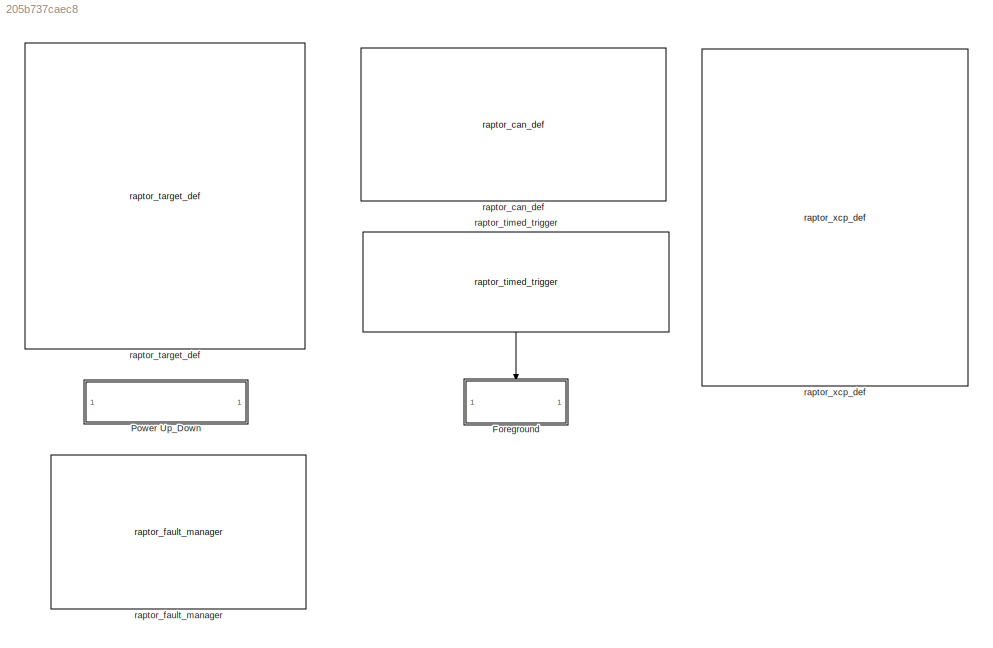
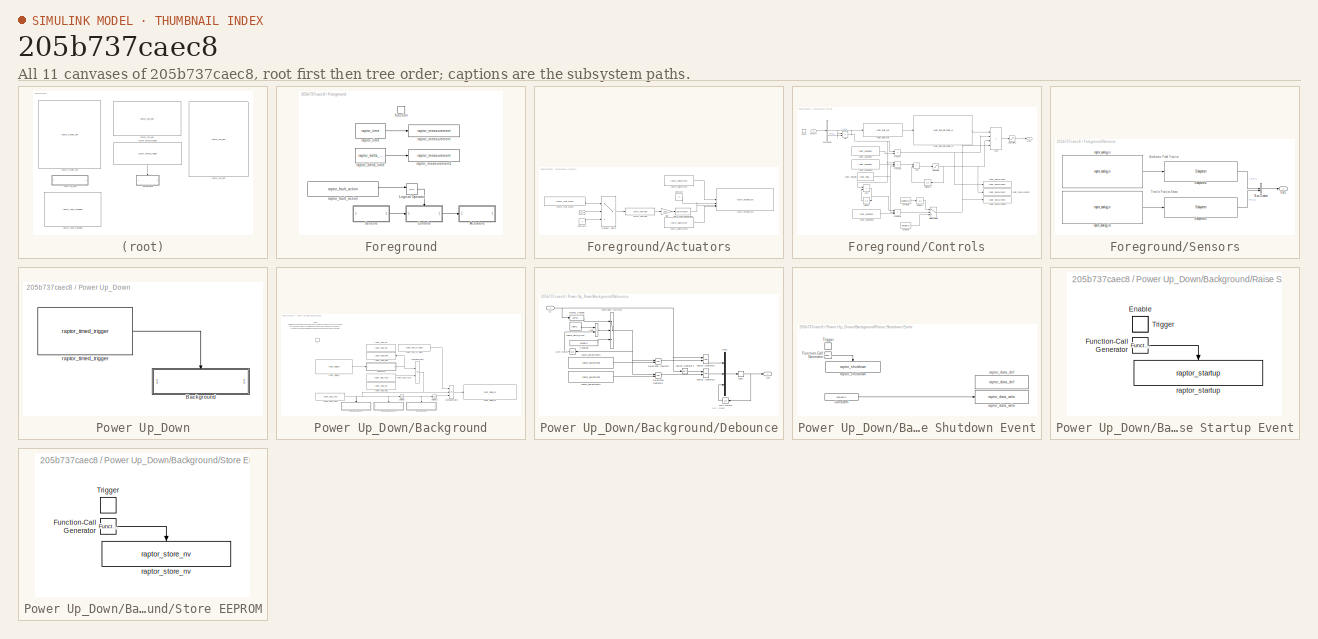
[diagram: thumbnail index - all 11 canvases of the model, root first then tree order]
MODEL slx_205b737caec8
KIND model
CONFIG AbsTol = auto
CONFIG EnableMultiTasking = on
CONFIG FixedStep = 0.005
CONFIG InitFcn = try, model_open; catch, end
CONFIG MaxStep = auto
CONFIG MinStep = auto
CONFIG PreLoadFcn = try, model_open; catch, disp('Error occurred while executing model pre-load callback: model_open.m'); disp('Please assure that the MATLAB working directory is set to the model directory before opening.'); end
CONFIG RelTol = 1e-3
CONFIG SampleTimeConstraint = Unconstrained
CONFIG SolverName = FixedStepDiscrete
CONFIG StartTime = 0.0
CONFIG StopTime = 10.0
BLOCK [SubSystem] Foreground
  RTWSystemCode = Nonreusable function
  TreatAsAtomicUnit = on
BLOCK [SubSystem] Foreground/Actuators
BLOCK [Constant] Foreground/Actuators/Constant
  OutDataTypeStr = boolean
  Value = 0
BLOCK [Constant] Foreground/Actuators/Constant1
  OutDataTypeStr = double
  Value = 0
BLOCK [Inport] Foreground/Actuators/Controls
BLOCK [DataTypeConversion] Foreground/Actuators/Data Type Conversion
  OutDataTypeStr = int16
  RndMeth = Floor
  SaturateOnIntegerOverflow = off
BLOCK [Gain] Foreground/Actuators/Gain
  Gain = 100
BLOCK [MultiPortSwitch] Foreground/Actuators/Multiport Switch
  DataPortOrder = Zero-based contiguous
  InputSameDT = off
  Inputs = 2
  SaturateOnIntegerOverflow = off
  zeroidx = on
BLOCK [Reference] Foreground/Actuators/raptor_adjustment  REF=Raptor_lib/Data Storage/raptor_adjustment
  SourceBlock = Raptor_lib/Data Storage/raptor_adjustment
  SourceProductName = Raptor
  SourceType = Adjustment
BLOCK [Reference] Foreground/Actuators/raptor_adjustment1  REF=Raptor_lib/Data Storage/raptor_adjustment
  SourceBlock = Raptor_lib/Data Storage/raptor_adjustment
  SourceProductName = Raptor
  SourceType = Adjustment
BLOCK [Reference] Foreground/Actuators/raptor_fault_action  REF=Raptor_lib/Faults/raptor_fault_action
  SourceBlock = Raptor_lib/Faults/raptor_fault_action
  SourceProductName = Raptor
  SourceType = Fault Action
BLOCK [Reference] Foreground/Actuators/raptor_hbridge_out  REF=Raptor_lib/Input & Output/raptor_hbridge_out
  SourceBlock = Raptor_lib/Input & Output/raptor_hbridge_out
  SourceProductName = Raptor
  SourceType = H-Bridge Output Block
BLOCK [Reference] Foreground/Actuators/raptor_override  REF=Raptor_lib/Data Storage/raptor_override
  SourceBlock = Raptor_lib/Data Storage/raptor_override
  SourceProductName = Raptor
  SourceType = Override
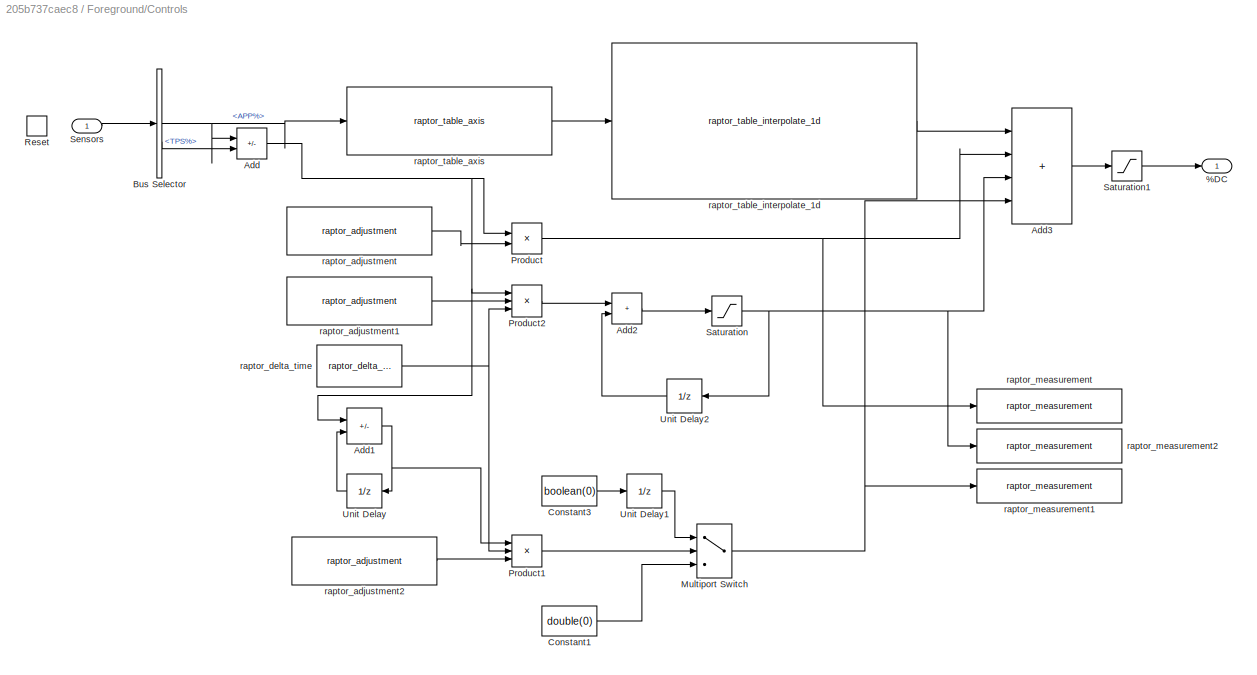
BLOCK [SubSystem] Foreground/Controls
BLOCK [Outport] Foreground/Controls/%DC
BLOCK [Sum] Foreground/Controls/Add
  IconShape = rectangular
  Inputs = +-
BLOCK [Sum] Foreground/Controls/Add1
  IconShape = rectangular
  Inputs = +-
BLOCK [Sum] Foreground/Controls/Add2
  IconShape = rectangular
BLOCK [Sum] Foreground/Controls/Add3
  IconShape = rectangular
  Inputs = ++++
BLOCK [BusSelector] Foreground/Controls/Bus Selector
  OutputSignals = APP%,TPS%
BLOCK [Constant] Foreground/Controls/Constant1
  Value = double(0)
BLOCK [Constant] Foreground/Controls/Constant3
  Value = boolean(0)
BLOCK [MultiPortSwitch] Foreground/Controls/Multiport Switch
  DataPortOrder = Zero-based contiguous
  InputSameDT = off
  Inputs = 2
  SaturateOnIntegerOverflow = off
  zeroidx = on
BLOCK [Product] Foreground/Controls/Product
BLOCK [Product] Foreground/Controls/Product1
  Inputs = */*
BLOCK [Product] Foreground/Controls/Product2
  Inputs = 3
BLOCK [EnablePort] Foreground/Controls/Reset
  StatesWhenEnabling = reset
BLOCK [Saturate] Foreground/Controls/Saturation
  LowerLimit = -30
  UpperLimit = 30
BLOCK [Saturate] Foreground/Controls/Saturation1
  LowerLimit = -60
  UpperLimit = 60
BLOCK [Inport] Foreground/Controls/Sensors
BLOCK [UnitDelay] Foreground/Controls/Unit Delay
  HasFrameUpgradeWarning = on
  NameLocation = top
  SampleTime = -1
BLOCK [UnitDelay] Foreground/Controls/Unit Delay1
  HasFrameUpgradeWarning = on
  InitialCondition = 1
  SampleTime = -1
BLOCK [UnitDelay] Foreground/Controls/Unit Delay2
  HasFrameUpgradeWarning = on
  NameLocation = top
  SampleTime = -1
BLOCK [Reference] Foreground/Controls/raptor_adjustment  REF=Raptor_lib/Data Storage/raptor_adjustment
  SourceBlock = Raptor_lib/Data Storage/raptor_adjustment
  SourceProductName = Raptor
  SourceType = Adjustment
BLOCK [Reference] Foreground/Controls/raptor_adjustment1  REF=Raptor_lib/Data Storage/raptor_adjustment
  SourceBlock = Raptor_lib/Data Storage/raptor_adjustment
  SourceProductName = Raptor
  SourceType = Adjustment
BLOCK [Reference] Foreground/Controls/raptor_adjustment2  REF=Raptor_lib/Data Storage/raptor_adjustment
  SourceBlock = Raptor_lib/Data Storage/raptor_adjustment
  SourceProductName = Raptor
  SourceType = Adjustment
BLOCK [Reference] Foreground/Controls/raptor_delta_time  REF=Raptor_lib/Triggers/raptor_delta_time
  SourceBlock = Raptor_lib/Triggers/raptor_delta_time
  SourceProductName = Raptor
  SourceType = Delta Time
BLOCK [Reference] Foreground/Controls/raptor_measurement  REF=Raptor_lib/Data Storage/raptor_measurement
  SourceBlock = Raptor_lib/Data Storage/raptor_measurement
  SourceProductName = Raptor
  SourceType = Measurement
BLOCK [Reference] Foreground/Controls/raptor_measurement1  REF=Raptor_lib/Data Storage/raptor_measurement
  SourceBlock = Raptor_lib/Data Storage/raptor_measurement
  SourceProductName = Raptor
  SourceType = Measurement
BLOCK [Reference] Foreground/Controls/raptor_measurement2  REF=Raptor_lib/Data Storage/raptor_measurement
  SourceBlock = Raptor_lib/Data Storage/raptor_measurement
  SourceProductName = Raptor
  SourceType = Measurement
BLOCK [Reference] Foreground/Controls/raptor_table_axis  REF=Raptor_lib/Table Lookup/raptor_table_axis
  SourceBlock = Raptor_lib/Table Lookup/raptor_table_axis
  SourceProductName = Raptor
  SourceType = Table Axis
BLOCK [Reference] Foreground/Controls/raptor_table_interpolate_1d  REF=Raptor_lib/Table Lookup/raptor_table_interpolate_1d
  SourceBlock = Raptor_lib/Table Lookup/raptor_table_interpolate_1d
  SourceProductName = Raptor
  SourceType = Table Interpolation 1d
BLOCK [Logic] Foreground/Logical Operator
  AllPortsSameDT = off
  Operator = NOT
  OutDataTypeStr = boolean
BLOCK [SubSystem] Foreground/Sensors
BLOCK [BusCreator] Foreground/Sensors/Bus Creator
  DisplayOption = bar
  InheritFromInputs = on
  Inputs = 2
BLOCK [Outport] Foreground/Sensors/Out1
BLOCK [Reference] Foreground/Sensors/Subsystem1  REF=Blocks_Library/Subsystem
  SourceBlock = Blocks_Library/Subsystem
BLOCK [Reference] Foreground/Sensors/Subsystem2  REF=Blocks_Library/Subsystem
  SourceBlock = Blocks_Library/Subsystem
BLOCK [Reference] Foreground/Sensors/raptor_analog_in  REF=Raptor_lib/Input & Output/raptor_analog_in
  SourceBlock = Raptor_lib/Input & Output/raptor_analog_in
  SourceProductName = Raptor
  SourceType = Analog Input
BLOCK [Reference] Foreground/Sensors/raptor_analog_in1  REF=Raptor_lib/Input & Output/raptor_analog_in
  SourceBlock = Raptor_lib/Input & Output/raptor_analog_in
  SourceProductName = Raptor
  SourceType = Analog Input
BLOCK [TriggerPort] Foreground/function
  StatesWhenEnabling = held
  TriggerType = function-call
  VariantControl = Variant
BLOCK [Reference] Foreground/raptor_delta_time  REF=Raptor_lib/Triggers/raptor_delta_time
  SourceBlock = Raptor_lib/Triggers/raptor_delta_time
  SourceProductName = Raptor
  SourceType = Delta Time
BLOCK [Reference] Foreground/raptor_fault_action  REF=Raptor_lib/Faults/raptor_fault_action
  SourceBlock = Raptor_lib/Faults/raptor_fault_action
  SourceProductName = Raptor
  SourceType = Fault Action
BLOCK [Reference] Foreground/raptor_measurement  REF=Raptor_lib/Data Storage/raptor_measurement
  SourceBlock = Raptor_lib/Data Storage/raptor_measurement
  SourceProductName = Raptor
  SourceType = Measurement
BLOCK [Reference] Foreground/raptor_measurement1  REF=Raptor_lib/Data Storage/raptor_measurement
  SourceBlock = Raptor_lib/Data Storage/raptor_measurement
  SourceProductName = Raptor
  SourceType = Measurement
BLOCK [Reference] Foreground/raptor_time  REF=Raptor_lib/Triggers/raptor_time
  SourceBlock = Raptor_lib/Triggers/raptor_time
  SourceProductName = Raptor
  SourceType = Time
BLOCK [SubSystem] Power Up_Down
BLOCK [SubSystem] Power Up_Down/Background
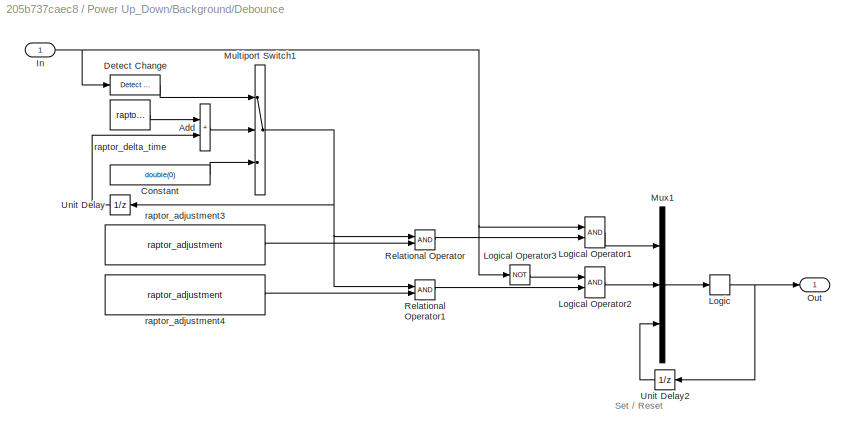
BLOCK [SubSystem] Power Up_Down/Background/Debounce
BLOCK [Sum] Power Up_Down/Background/Debounce/Add
  IconShape = rectangular
BLOCK [Constant] Power Up_Down/Background/Debounce/Constant
  Value = double(0)
BLOCK [Reference] Power Up_Down/Background/Debounce/Detect Change  REF=simulink/Logic and Bit
Operations/Detect
Change
  SourceBlock = simulink/Logic and Bit\nOperations/Detect\nChange
  SourceType = Detect Change
BLOCK [Inport] Power Up_Down/Background/Debounce/In
BLOCK [CombinatorialLogic] Power Up_Down/Background/Debounce/Logic
  TruthTable = [0;1;0;0;1;1;0;0]
BLOCK [Logic] Power Up_Down/Background/Debounce/Logical Operator1
  AllPortsSameDT = off
  OutDataTypeStr = boolean
BLOCK [Logic] Power Up_Down/Background/Debounce/Logical Operator2
  AllPortsSameDT = off
  OutDataTypeStr = boolean
BLOCK [Logic] Power Up_Down/Background/Debounce/Logical Operator3
  AllPortsSameDT = off
  Inputs = 1
  Operator = NOT
  OutDataTypeStr = boolean
BLOCK [MultiPortSwitch] Power Up_Down/Background/Debounce/Multiport Switch1
  DataPortOrder = Zero-based contiguous
  InputSameDT = off
  Inputs = 2
  SaturateOnIntegerOverflow = off
  zeroidx = on
BLOCK [Mux] Power Up_Down/Background/Debounce/Mux1
  DisplayOption = bar
  Inputs = 3
BLOCK [Outport] Power Up_Down/Background/Debounce/Out
  VectorParamsAs1DForOutWhenUnconnected = off
BLOCK [RelationalOperator] Power Up_Down/Background/Debounce/Relational Operator
  InputSameDT = off
  OutDataTypeStr = boolean
BLOCK [RelationalOperator] Power Up_Down/Background/Debounce/Relational Operator1
  InputSameDT = off
  OutDataTypeStr = boolean
BLOCK [UnitDelay] Power Up_Down/Background/Debounce/Unit Delay
  HasFrameUpgradeWarning = on
  SampleTime = -1
BLOCK [UnitDelay] Power Up_Down/Background/Debounce/Unit Delay2
  HasFrameUpgradeWarning = on
  InitialCondition = 1
  SampleTime = -1
BLOCK [Reference] Power Up_Down/Background/Debounce/raptor_adjustment3  REF=Raptor_lib/Data Storage/raptor_adjustment
  SourceBlock = Raptor_lib/Data Storage/raptor_adjustment
  SourceProductName = Raptor
  SourceType = Adjustment
BLOCK [Reference] Power Up_Down/Background/Debounce/raptor_adjustment4  REF=Raptor_lib/Data Storage/raptor_adjustment
  SourceBlock = Raptor_lib/Data Storage/raptor_adjustment
  SourceProductName = Raptor
  SourceType = Adjustment
BLOCK [Reference] Power Up_Down/Background/Debounce/raptor_delta_time  REF=Raptor_lib/Triggers/raptor_delta_time
  SourceBlock = Raptor_lib/Triggers/raptor_delta_time
  SourceProductName = Raptor
  SourceType = Delta Time
BLOCK [Logic] Power Up_Down/Background/Logical Operator1
  Operator = OR
  OutDataTypeStr = boolean
BLOCK [Logic] Power Up_Down/Background/Logical Operator2
  Inputs = 3
  Operator = OR
  OutDataTypeStr = boolean
BLOCK [SubSystem] Power Up_Down/Background/Raise Shutdown Event
  TreatAsAtomicUnit = on
BLOCK [Constant] Power Up_Down/Background/Raise Shutdown Event/Constant
  Value = boolean(1)
BLOCK [Reference] Power Up_Down/Background/Raise Shutdown Event/Function-Call Generator  REF=simulink/Ports &
Subsystems/Function-Call
Generator
  SourceBlock = simulink/Ports &\nSubsystems/Function-Call\nGenerator
  SourceType = Function-Call Generator
BLOCK [TriggerPort] Power Up_Down/Background/Raise Shutdown Event/Trigger
  StatesWhenEnabling = held
  TriggerType = falling
  VariantControl = Variant
BLOCK [Reference] Power Up_Down/Background/Raise Shutdown Event/raptor_data_def  REF=Raptor_lib/Data Storage/raptor_data_def
  SourceBlock = Raptor_lib/Data Storage/raptor_data_def
  SourceProductName = Raptor
  SourceType = Data Store Definition Block
BLOCK [Reference] Power Up_Down/Background/Raise Shutdown Event/raptor_data_write  REF=Raptor_lib/Data Storage/raptor_data_write
  SourceBlock = Raptor_lib/Data Storage/raptor_data_write
  SourceProductName = Raptor
  SourceType = Data Write Block
BLOCK [Reference] Power Up_Down/Background/Raise Shutdown Event/raptor_shutdown  REF=Raptor_lib/Triggers/raptor_shutdown
  SourceBlock = Raptor_lib/Triggers/raptor_shutdown
  SourceProductName = Raptor
  SourceType = Shutdown
BLOCK [SubSystem] Power Up_Down/Background/Raise Startup Event
  TreatAsAtomicUnit = on
BLOCK [EnablePort] Power Up_Down/Background/Raise Startup Event/Enable
BLOCK [Reference] Power Up_Down/Background/Raise Startup Event/Function-Call Generator  REF=simulink/Ports &
Subsystems/Function-Call
Generator
  SourceBlock = simulink/Ports &\nSubsystems/Function-Call\nGenerator
  SourceType = Function-Call Generator
BLOCK [TriggerPort] Power Up_Down/Background/Raise Startup Event/Trigger
  StatesWhenEnabling = held
  VariantControl = Variant
BLOCK [Reference] Power Up_Down/Background/Raise Startup Event/raptor_startup  REF=Raptor_lib/Triggers/raptor_startup
  SourceBlock = Raptor_lib/Triggers/raptor_startup
  SourceProductName = Raptor
  SourceType = Startup
BLOCK [SubSystem] Power Up_Down/Background/Store EEPROM
  TreatAsAtomicUnit = on
BLOCK [Reference] Power Up_Down/Background/Store EEPROM/Function-Call Generator  REF=simulink/Ports &
Subsystems/Function-Call
Generator
  SourceBlock = simulink/Ports &\nSubsystems/Function-Call\nGenerator
  SourceType = Function-Call Generator
BLOCK [TriggerPort] Power Up_Down/Background/Store EEPROM/Trigger
  StatesWhenEnabling = held
  TriggerType = falling
  VariantControl = Variant
BLOCK [Reference] Power Up_Down/Background/Store EEPROM/raptor_store_nv  REF=Raptor_lib/Data Storage/raptor_store_nv
  SourceBlock = Raptor_lib/Data Storage/raptor_store_nv
  SourceProductName = Raptor
  SourceType = Store NonVolatile
BLOCK [UnitDelay] Power Up_Down/Background/Unit Delay
  HasFrameUpgradeWarning = on
  SampleTime = -1
BLOCK [UnitDelay] Power Up_Down/Background/Unit Delay1
  HasFrameUpgradeWarning = on
  SampleTime = -1
BLOCK [TriggerPort] Power Up_Down/Background/f
  TriggerType = function-call
  VariantControl = Variant
  ZeroCross = off
BLOCK [Reference] Power Up_Down/Background/raptor_data_def  REF=Raptor_lib/Data Storage/raptor_data_def
  SourceBlock = Raptor_lib/Data Storage/raptor_data_def
  SourceProductName = Raptor
  SourceType = Data Store Definition Block
BLOCK [Reference] Power Up_Down/Background/raptor_data_def1  REF=Raptor_lib/Data Storage/raptor_data_def
  SourceBlock = Raptor_lib/Data Storage/raptor_data_def
  SourceProductName = Raptor
  SourceType = Data Store Definition Block
BLOCK [Reference] Power Up_Down/Background/raptor_data_read  REF=Raptor_lib/Data Storage/raptor_data_read
  SourceBlock = Raptor_lib/Data Storage/raptor_data_read
  SourceProductName = Raptor
  SourceType = Data Read Block
BLOCK [Reference] Power Up_Down/Background/raptor_data_read1  REF=Raptor_lib/Data Storage/raptor_data_read
  SourceBlock = Raptor_lib/Data Storage/raptor_data_read
  SourceProductName = Raptor
  SourceType = Data Read Block
BLOCK [Reference] Power Up_Down/Background/raptor_data_write  REF=Raptor_lib/Data Storage/raptor_data_write
  SourceBlock = Raptor_lib/Data Storage/raptor_data_write
  SourceProductName = Raptor
  SourceType = Data Write Block
BLOCK [Reference] Power Up_Down/Background/raptor_digital_in  REF=Raptor_lib/Input & Output/raptor_digital_in
  SourceBlock = Raptor_lib/Input & Output/raptor_digital_in
  SourceProductName = Raptor
  SourceType = Digital Input Block
BLOCK [Reference] Power Up_Down/Background/raptor_digital_out  REF=Raptor_lib/Input & Output/raptor_digital_out
  SourceBlock = Raptor_lib/Input & Output/raptor_digital_out
  SourceProductName = Raptor
  SourceType = Digital Output
BLOCK [Reference] Power Up_Down/Background/raptor_sfun_nv_status  REF=Raptor_lib/Data Storage/raptor_sfun_nv_status
  SourceBlock = Raptor_lib/Data Storage/raptor_sfun_nv_status
  SourceProductName = Raptor
  SourceType = Nonvolatile Status
BLOCK [Reference] Power Up_Down/raptor_timed_trigger  REF=Raptor_lib/Triggers/raptor_timed_trigger
  SourceBlock = Raptor_lib/Triggers/raptor_timed_trigger
  SourceProductName = Raptor
  SourceType = Timed Trigger Block
BLOCK [Reference] raptor_can_def  REF=Raptor_lib/CAN/raptor_can_def
  SourceBlock = Raptor_lib/CAN/raptor_can_def
  SourceProductName = Raptor
  SourceType = CAN Definition
BLOCK [Reference] raptor_fault_manager  REF=Raptor_lib/Faults/raptor_fault_manager
  SourceBlock = Raptor_lib/Faults/raptor_fault_manager
  SourceProductName = Raptor
  SourceType = Fault Manager
BLOCK [Reference] raptor_target_def  REF=Raptor_lib/Configuration/raptor_target_def
  SourceBlock = Raptor_lib/Configuration/raptor_target_def
  SourceProductName = Raptor
  SourceType = Target Definition Block
BLOCK [Reference] raptor_timed_trigger  REF=Raptor_lib/Triggers/raptor_timed_trigger
  NameLocation = left
  SourceBlock = Raptor_lib/Triggers/raptor_timed_trigger
  SourceProductName = Raptor
  SourceType = Timed Trigger Block
BLOCK [Reference] raptor_xcp_def  REF=Raptor_lib/Configuration/raptor_xcp_def
  SourceBlock = Raptor_lib/Configuration/raptor_xcp_def
  SourceProductName = Raptor
  SourceType = XCP Definition Block
ANNOTATION Foreground/Sensors: Accelerator Pedal Position
ANNOTATION Foreground/Sensors: Throttle Position Sensor
ANNOTATION Power Up_Down/Background: Notes : - Calling the shutdown task stops the foreground tasks. However, background tasks continue, so the reading of key switch must be in this subsystem to allow the module to resume operation (by calling the startup task) if keyswitch is turned back on before the module actually turns off. - The Startup Event is automatically called when the module is powered on after being completely off. The ...<+96ch>
ANNOTATION Power Up_Down/Background/Debounce: Set / Reset
LINE Foreground/Actuators/Constant1:1 -> Foreground/Actuators/Multiport Switch:3
LINE Foreground/Actuators/Constant:1 -> Foreground/Actuators/raptor_hbridge_out:2
LINE Foreground/Actuators/Controls:1 -> Foreground/Actuators/Multiport Switch:2
LINE Foreground/Actuators/Data Type Conversion:1 -> Foreground/Actuators/raptor_hbridge_out:3
LINE Foreground/Actuators/Gain:1 -> Foreground/Actuators/Data Type Conversion:1
LINE Foreground/Actuators/Multiport Switch:1 -> Foreground/Actuators/raptor_override:1
LINE Foreground/Actuators/raptor_adjustment1:1 -> Foreground/Actuators/raptor_hbridge_out:4
LINE Foreground/Actuators/raptor_adjustment:1 -> Foreground/Actuators/raptor_hbridge_out:1
LINE Foreground/Actuators/raptor_fault_action:1 -> Foreground/Actuators/Multiport Switch:1
LINE Foreground/Actuators/raptor_override:1 -> Foreground/Actuators/Gain:1
NET Foreground/Controls/Add1:1 -> Foreground/Controls/Product1:1, Foreground/Controls/Unit Delay:1
LINE Foreground/Controls/Add2:1 -> Foreground/Controls/Saturation:1
LINE Foreground/Controls/Add3:1 -> Foreground/Controls/Saturation1:1
NET Foreground/Controls/Add:1 -> Foreground/Controls/Add1:1, Foreground/Controls/Product2:1, Foreground/Controls/Product:1
NET Foreground/Controls/Bus Selector:1 -> Foreground/Controls/Add:1, Foreground/Controls/raptor_table_axis:1
LINE Foreground/Controls/Bus Selector:2 -> Foreground/Controls/Add:2
LINE Foreground/Controls/Constant1:1 -> Foreground/Controls/Multiport Switch:3
LINE Foreground/Controls/Constant3:1 -> Foreground/Controls/Unit Delay1:1
NET Foreground/Controls/Multiport Switch:1 -> Foreground/Controls/Add3:4, Foreground/Controls/raptor_measurement1:1
LINE Foreground/Controls/Product1:1 -> Foreground/Controls/Multiport Switch:2
LINE Foreground/Controls/Product2:1 -> Foreground/Controls/Add2:1
NET Foreground/Controls/Product:1 -> Foreground/Controls/Add3:2, Foreground/Controls/raptor_measurement:1
LINE Foreground/Controls/Saturation1:1 -> Foreground/Controls/%DC:1
NET Foreground/Controls/Saturation:1 -> Foreground/Controls/Add3:3, Foreground/Controls/Unit Delay2:1, Foreground/Controls/raptor_measurement2:1
LINE Foreground/Controls/Sensors:1 -> Foreground/Controls/Bus Selector:1
LINE Foreground/Controls/Unit Delay1:1 -> Foreground/Controls/Multiport Switch:1
LINE Foreground/Controls/Unit Delay2:1 -> Foreground/Controls/Add2:2
LINE Foreground/Controls/Unit Delay:1 -> Foreground/Controls/Add1:2
LINE Foreground/Controls/raptor_adjustment1:1 -> Foreground/Controls/Product2:2
LINE Foreground/Controls/raptor_adjustment2:1 -> Foreground/Controls/Product1:3
LINE Foreground/Controls/raptor_adjustment:1 -> Foreground/Controls/Product:2
NET Foreground/Controls/raptor_delta_time:1 -> Foreground/Controls/Product1:2, Foreground/Controls/Product2:3
LINE Foreground/Controls/raptor_table_axis:1 -> Foreground/Controls/raptor_table_interpolate_1d:1
LINE Foreground/Controls/raptor_table_interpolate_1d:1 -> Foreground/Controls/Add3:1
LINE Foreground/Controls:1 -> Foreground/Actuators:1
LINE Foreground/Logical Operator:1 -> Foreground/Controls:enable
LINE Foreground/Sensors/Bus Creator:1 -> Foreground/Sensors/Out1:1
LINE Foreground/Sensors/Subsystem1:1 -> Foreground/Sensors/Bus Creator:2
LINE Foreground/Sensors/Subsystem2:1 -> Foreground/Sensors/Bus Creator:1
LINE Foreground/Sensors/raptor_analog_in1:1 -> Foreground/Sensors/Subsystem1:1
LINE Foreground/Sensors/raptor_analog_in:1 -> Foreground/Sensors/Subsystem2:1
LINE Foreground/Sensors:1 -> Foreground/Controls:1
LINE Foreground/raptor_delta_time:1 -> Foreground/raptor_measurement1:1
LINE Foreground/raptor_fault_action:1 -> Foreground/Logical Operator:1
LINE Foreground/raptor_time:1 -> Foreground/raptor_measurement:1
LINE Power Up_Down/Background/Debounce/Add:1 -> Power Up_Down/Background/Debounce/Multiport Switch1:2
LINE Power Up_Down/Background/Debounce/Constant:1 -> Power Up_Down/Background/Debounce/Multiport Switch1:3
LINE Power Up_Down/Background/Debounce/Detect Change:1 -> Power Up_Down/Background/Debounce/Multiport Switch1:1
NET Power Up_Down/Background/Debounce/In:1 -> Power Up_Down/Background/Debounce/Detect Change:1, Power Up_Down/Background/Debounce/Logical Operator1:1, Power Up_Down/Background/Debounce/Logical Operator3:1
NET Power Up_Down/Background/Debounce/Logic:1 -> Power Up_Down/Background/Debounce/Out:1, Power Up_Down/Background/Debounce/Unit Delay2:1
LINE Power Up_Down/Background/Debounce/Logical Operator1:1 -> Power Up_Down/Background/Debounce/Mux1:1
LINE Power Up_Down/Background/Debounce/Logical Operator2:1 -> Power Up_Down/Background/Debounce/Mux1:2
LINE Power Up_Down/Background/Debounce/Logical Operator3:1 -> Power Up_Down/Background/Debounce/Logical Operator2:1
NET Power Up_Down/Background/Debounce/Multiport Switch1:1 -> Power Up_Down/Background/Debounce/Relational Operator1:1, Power Up_Down/Background/Debounce/Relational Operator:1, Power Up_Down/Background/Debounce/Unit Delay:1
LINE Power Up_Down/Background/Debounce/Mux1:1 -> Power Up_Down/Background/Debounce/Logic:1
LINE Power Up_Down/Background/Debounce/Relational Operator1:1 -> Power Up_Down/Background/Debounce/Logical Operator2:2
LINE Power Up_Down/Background/Debounce/Relational Operator:1 -> Power Up_Down/Background/Debounce/Logical Operator1:2
LINE Power Up_Down/Background/Debounce/Unit Delay2:1 -> Power Up_Down/Background/Debounce/Mux1:3
LINE Power Up_Down/Background/Debounce/Unit Delay:1 -> Power Up_Down/Background/Debounce/Add:2
LINE Power Up_Down/Background/Debounce/raptor_adjustment3:1 -> Power Up_Down/Background/Debounce/Relational Operator:2
LINE Power Up_Down/Background/Debounce/raptor_adjustment4:1 -> Power Up_Down/Background/Debounce/Relational Operator1:2
LINE Power Up_Down/Background/Debounce/raptor_delta_time:1 -> Power Up_Down/Background/Debounce/Add:1
NET Power Up_Down/Background/Debounce:1 -> Power Up_Down/Background/Logical Operator1:1, Power Up_Down/Background/raptor_data_write:1
NET Power Up_Down/Background/Logical Operator1:1 -> Power Up_Down/Background/Logical Operator2:2, Power Up_Down/Background/Raise Shutdown Event:trigger, Power Up_Down/Background/Raise Startup Event:trigger, Power Up_Down/Background/Unit Delay:1
LINE Power Up_Down/Background/Logical Operator2:1 -> Power Up_Down/Background/raptor_digital_out:1
LINE Power Up_Down/Background/Raise Shutdown Event/Constant:1 -> Power Up_Down/Background/Raise Shutdown Event/raptor_data_write:1
LINE Power Up_Down/Background/Raise Shutdown Event/Function-Call Generator:1 -> Power Up_Down/Background/Raise Shutdown Event/raptor_shutdown:trigger
LINE Power Up_Down/Background/Raise Startup Event/Function-Call Generator:1 -> Power Up_Down/Background/Raise Startup Event/raptor_startup:trigger
LINE Power Up_Down/Background/Store EEPROM/Function-Call Generator:1 -> Power Up_Down/Background/Store EEPROM/raptor_store_nv:trigger
LINE Power Up_Down/Background/Unit Delay1:1 -> Power Up_Down/Background/Logical Operator2:3
NET Power Up_Down/Background/Unit Delay:1 -> Power Up_Down/Background/Store EEPROM:trigger, Power Up_Down/Background/Unit Delay1:1
LINE Power Up_Down/Background/raptor_data_read1:1 -> Power Up_Down/Background/Logical Operator1:2
LINE Power Up_Down/Background/raptor_data_read:1 -> Power Up_Down/Background/Raise Startup Event:enable
LINE Power Up_Down/Background/raptor_digital_in:1 -> Power Up_Down/Background/Debounce:1
LINE Power Up_Down/Background/raptor_sfun_nv_status:1 -> Power Up_Down/Background/Logical Operator2:1
LINE Power Up_Down/raptor_timed_trigger:1 -> Power Up_Down/Background:trigger
LINE raptor_timed_trigger:1 -> Foreground:trigger
note: NET lines group one-source signal fan-out (src -> all destinations, sorted); 1:1 wires keep LINE
